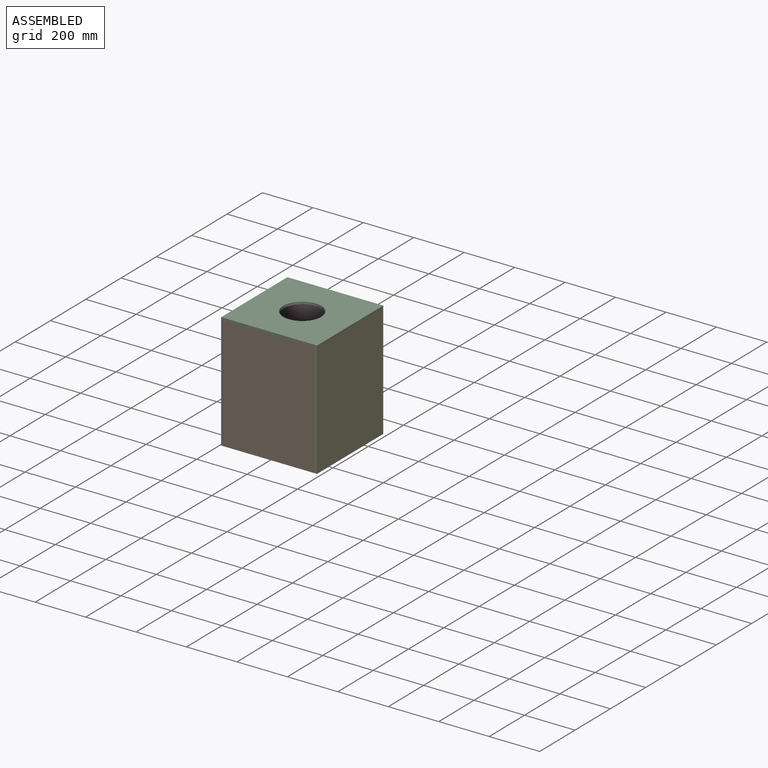
[diagram: assembled view]
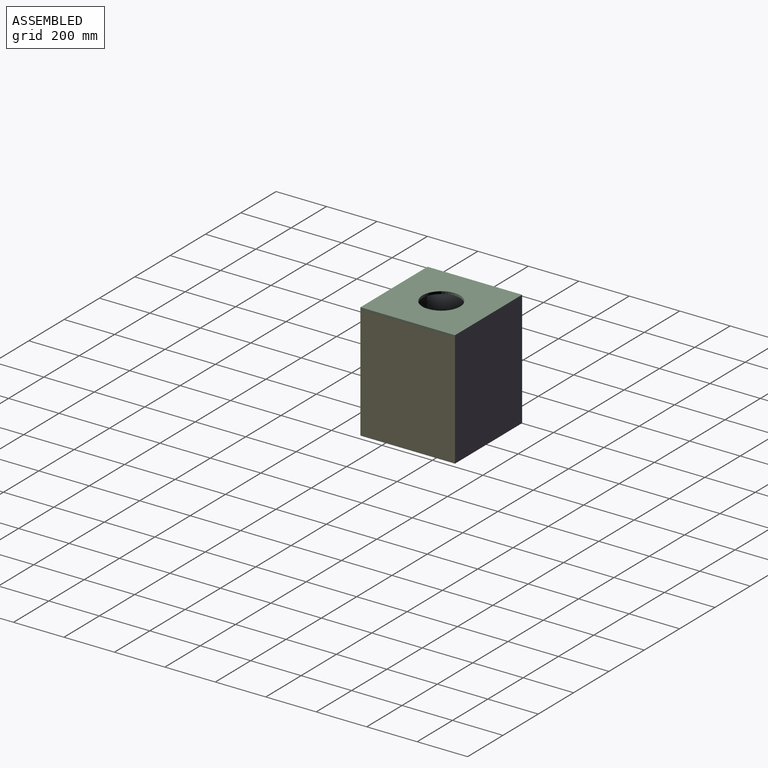
[diagram: assembled view, second angle]
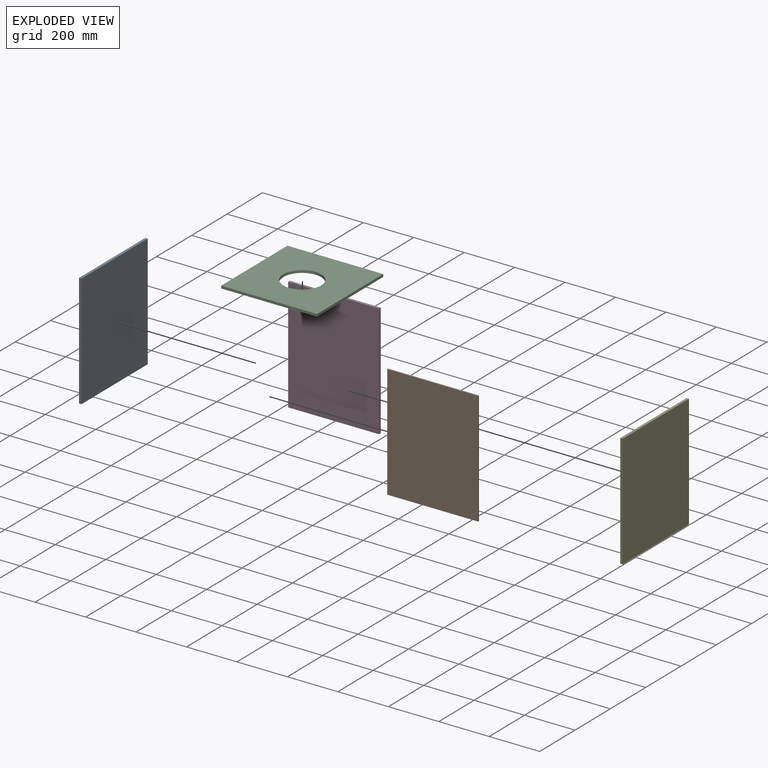
[diagram: exploded view]
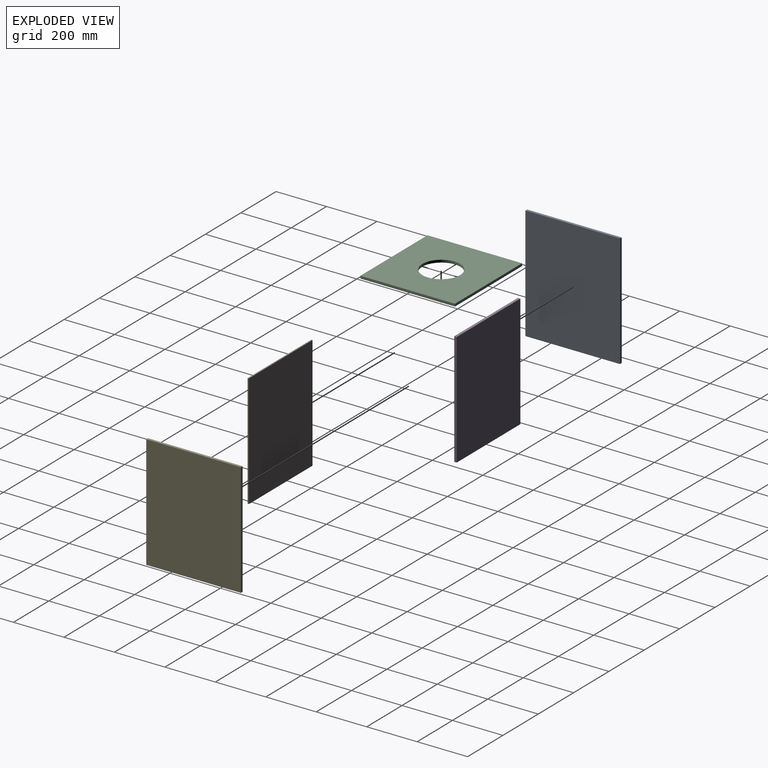
[diagram: exploded view, second angle]
ASSEMBLY  parts=5 mates=4
PART A: 6 faces, bbox 10x375x450 mm
  f0: plane 375x10mm, normal (0,0,-1), area 3750mm2, adj f1,f3,f4,f5
  f1: plane 450x10mm, normal (0,1,0), area 4500mm2, adj f0,f2,f4,f5
  f2: plane 375x10mm, normal (0,0,1), area 3750mm2, adj f1,f3,f4,f5
  f3: plane 450x10mm, normal (0,-1,0), area 4500mm2, adj f0,f2,f4,f5
  f4: plane 450x375mm, normal (1,0,0), area 168750mm2, adj f0,f1,f2,f3
  f5: plane 450x375mm, normal (-1,0,0), area 168750mm2, adj f0,f1,f2,f3
PART B: 6 faces, bbox 360x5x450 mm
  f0: plane 360x5mm, normal (0,0,-1), area 1800mm2, adj f1,f3,f4,f5
  f1: plane 450x5mm, normal (1,0,0), area 2250mm2, adj f0,f2,f4,f5
  f2: plane 360x5mm, normal (0,0,1), area 1800mm2, adj f1,f3,f4,f5
  f3: plane 450x5mm, normal (-1,0,0), area 2250mm2, adj f0,f2,f4,f5
  f4: plane 450x360mm, normal (0,-1,0), area 162000mm2, adj f0,f1,f2,f3
  f5: plane 450x360mm, normal (0,1,0), area 162000mm2, adj f0,f1,f2,f3
PART C: 7 faces, bbox 380x375x10 mm
  f0: plane 380x10mm, normal (0,-1,0), area 3800mm2, adj f1,f4,f5,f6
  f1: plane 375x10mm, normal (1,0,0), area 3750mm2, adj f0,f2,f5,f6
  f2: plane 380x10mm, normal (0,1,0), area 3800mm2, adj f1,f4,f5,f6
  f3: cylinder r=75mm len=150mm, axis (0,0,-1), area 4712.4mm2, adj f5,f6
  f4: plane 375x10mm, normal (-1,0,0), area 3750mm2, adj f0,f2,f5,f6
  f5: plane 380x375mm, normal (0,0,1), area 124828.5mm2, adj f0,f1,f2,f3,f4
  f6: plane 380x375mm, normal (0,0,-1), area 124828.5mm2, adj f0,f1,f2,f3,f4
PART D: 6 faces, bbox 360x10x450 mm
  f0: plane 360x10mm, normal (0,0,-1), area 3600mm2, adj f1,f3,f4,f5
  f1: plane 450x10mm, normal (1,0,0), area 4500mm2, adj f0,f2,f4,f5
  f2: plane 360x10mm, normal (0,0,1), area 3600mm2, adj f1,f3,f4,f5
  f3: plane 450x10mm, normal (-1,0,0), area 4500mm2, adj f0,f2,f4,f5
  f4: plane 450x360mm, normal (0,-1,0), area 162000mm2, adj f0,f1,f2,f3
  f5: plane 450x360mm, normal (0,1,0), area 162000mm2, adj f0,f1,f2,f3
PART E: same geometry as A
PLACE A t=(-377.09,100.82,40.09)mm
PLACE B t=(-192.09,-84.18,40.09)mm
PLACE C t=(-192.09,100.82,270.09)mm
PLACE D t=(-192.09,283.32,40.09)mm
PLACE E t=(-7.09,100.82,40.09)mm
MATE fastened A.f4 <-> B.f3  axis (1,0,0) through (-372.09,-86.68,265.09)mm
MATE fastened D.f1 <-> E.f5  axis (1,0,0) through (-12.09,288.32,265.09)mm
MATE fastened C.f6 <-> A.f2  axis (0,0,-1) through (-382.09,288.32,265.09)mm
MATE fastened E.f5 <-> B.f1  axis (-1,0,0) through (-12.09,-86.68,265.09)mm
